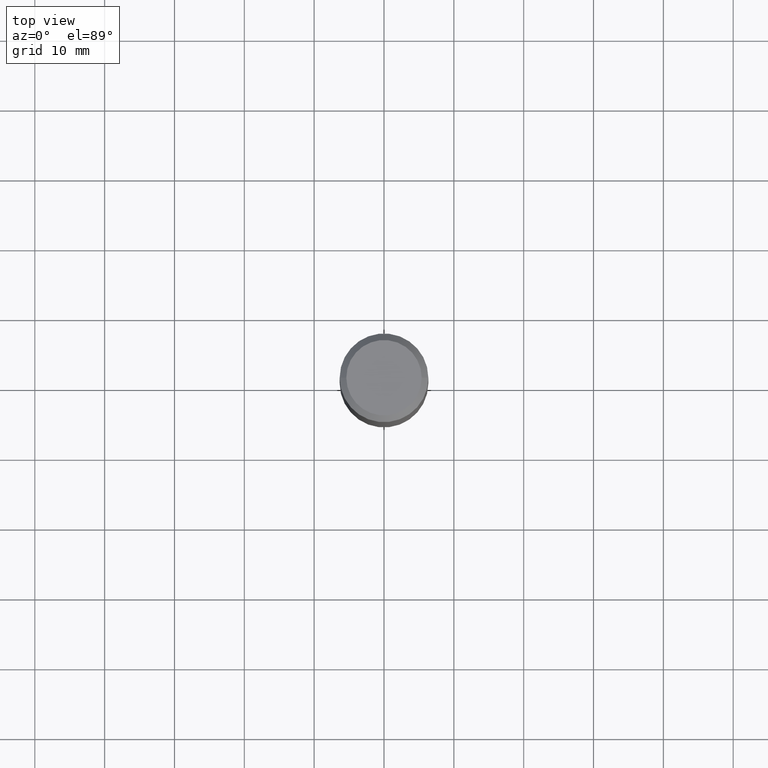
[diagram: clean part render]
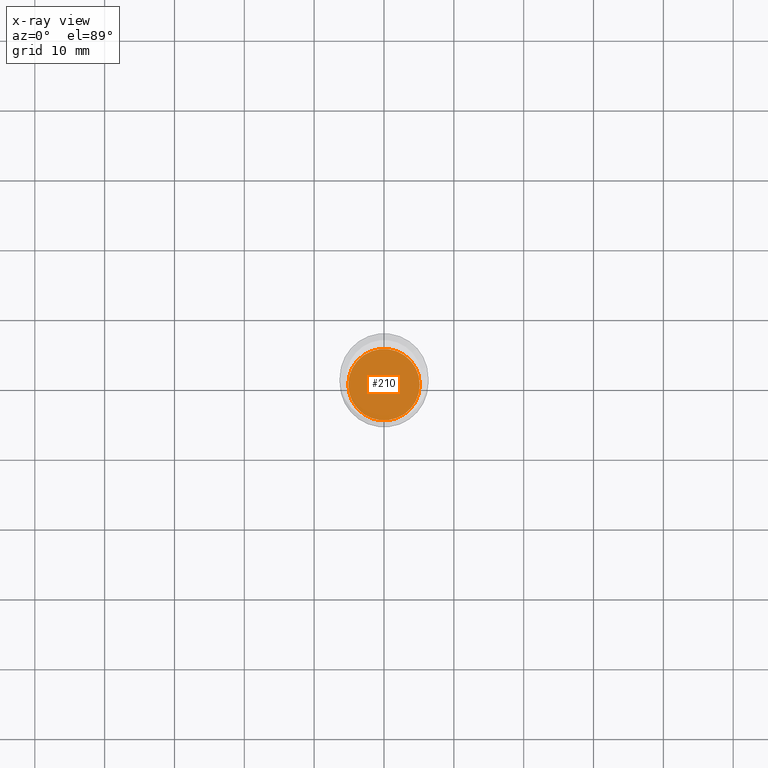
[diagram: x-ray — body ghosted, one internal face saturated and labeled with its STEP entity id]
A machine part, top view, then the same camera in x-ray: the body is ghosted and one INTERNAL B-rep face — a face not visible from any outside direction — is saturated and labeled: STEP entity #210.
In plain terms, the highlighted planar face has unit normal (-0, 0, 1).
Its self-contained STEP definition (entity closure, byte-faithful):
#7 = PLANE ( 'NONE',  #235 ) ;
#11 = CARTESIAN_POINT ( 'NONE',  ( -0.2015000000000000124, -6.522693131492816436E-15, -2.279000000000000359 ) ) ;
#61 = CARTESIAN_POINT ( 'NONE',  ( 5.573223409295926376E-29, -7.957085971223528811E-15, -2.279000000000000359 ) ) ;
#99 = ORIENTED_EDGE ( 'NONE', *, *, #362, .F. ) ;
#120 = VERTEX_POINT ( 'NONE', #271 ) ;
#148 = CARTESIAN_POINT ( 'NONE',  ( 5.573223409295926376E-29, -7.957085971223528811E-15, -2.279000000000000359 ) ) ;
#210 = ADVANCED_FACE ( 'NONE', ( #347 ), #7, .F. ) ;
#216 = CARTESIAN_POINT ( 'NONE',  ( 5.573223409295926376E-29, -7.957085971223528811E-15, -2.279000000000000359 ) ) ;
#228 = CIRCLE ( 'NONE', #278, 0.2015000000000000124 ) ;
#235 = AXIS2_PLACEMENT_3D ( 'NONE', #148, #349, #310 ) ;
#253 = CIRCLE ( 'NONE', #487, 0.2015000000000000124 ) ;
#271 = CARTESIAN_POINT ( 'NONE',  ( 0.2015000000000000124, -9.364152950777312752E-15, -2.279000000000000359 ) ) ;
#278 = AXIS2_PLACEMENT_3D ( 'NONE', #61, #368, #340 ) ;
#292 = VERTEX_POINT ( 'NONE', #11 ) ;
#300 = ORIENTED_EDGE ( 'NONE', *, *, #468, .F. ) ;
#310 = DIRECTION ( 'NONE',  ( 1.000000000000000000, -6.982962677686265922E-15, 4.876176775795935793E-29 ) ) ;
#340 = DIRECTION ( 'NONE',  ( 1.000000000000000000, -6.982962677686272233E-15, 0.000000000000000000 ) ) ;
#347 = FACE_OUTER_BOUND ( 'NONE', #480, .T. ) ;
#349 = DIRECTION ( 'NONE',  ( -2.438088387897960049E-29, 3.491481338843145188E-15, 1.000000000000000000 ) ) ;
#362 = EDGE_CURVE ( 'NONE', #292, #120, #253, .T. ) ;
#366 = DIRECTION ( 'NONE',  ( -2.445468806185136597E-29, 3.491481338843145583E-15, 1.000000000000000000 ) ) ;
#368 = DIRECTION ( 'NONE',  ( -2.445468806185136597E-29, 3.491481338843145583E-15, 1.000000000000000000 ) ) ;
#370 = DIRECTION ( 'NONE',  ( 1.000000000000000000, -6.982962677686272233E-15, 0.000000000000000000 ) ) ;
#468 = EDGE_CURVE ( 'NONE', #120, #292, #228, .T. ) ;
#480 = EDGE_LOOP ( 'NONE', ( #300, #99 ) ) ;
#487 = AXIS2_PLACEMENT_3D ( 'NONE', #216, #366, #370 ) ;